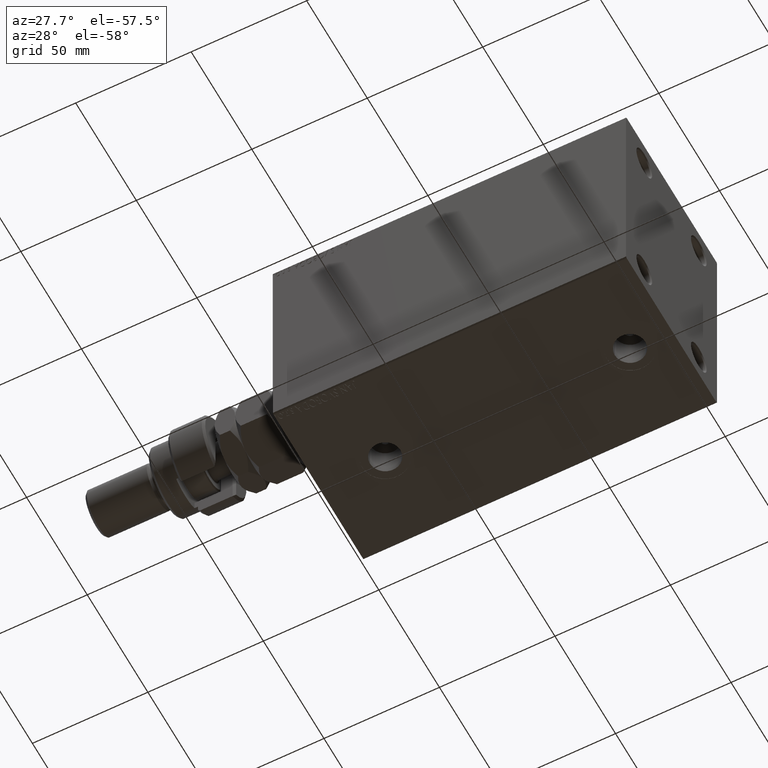
[diagram: clean part render]
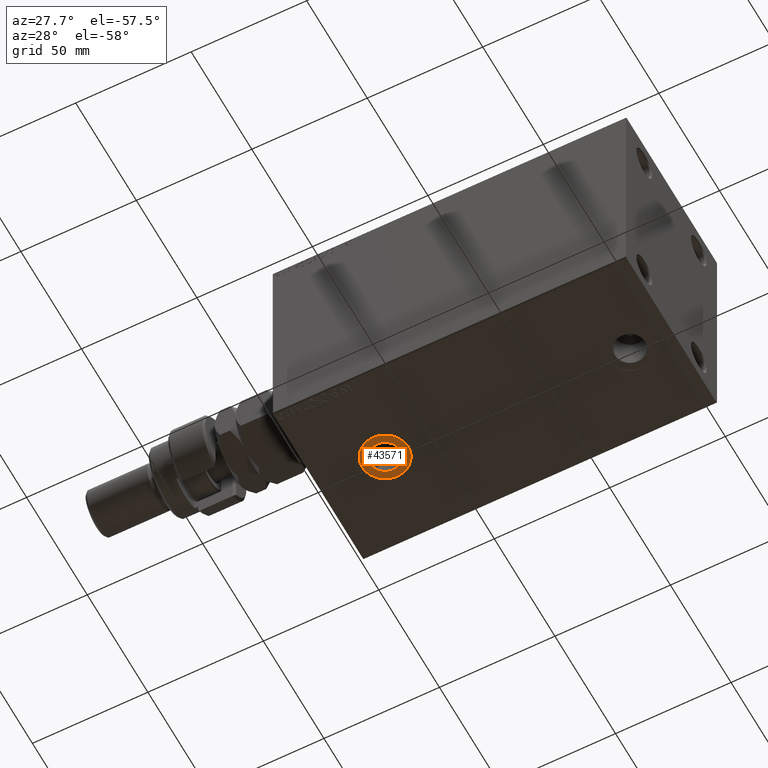
[diagram: same view with one face highlighted and labeled with its STEP entity id]
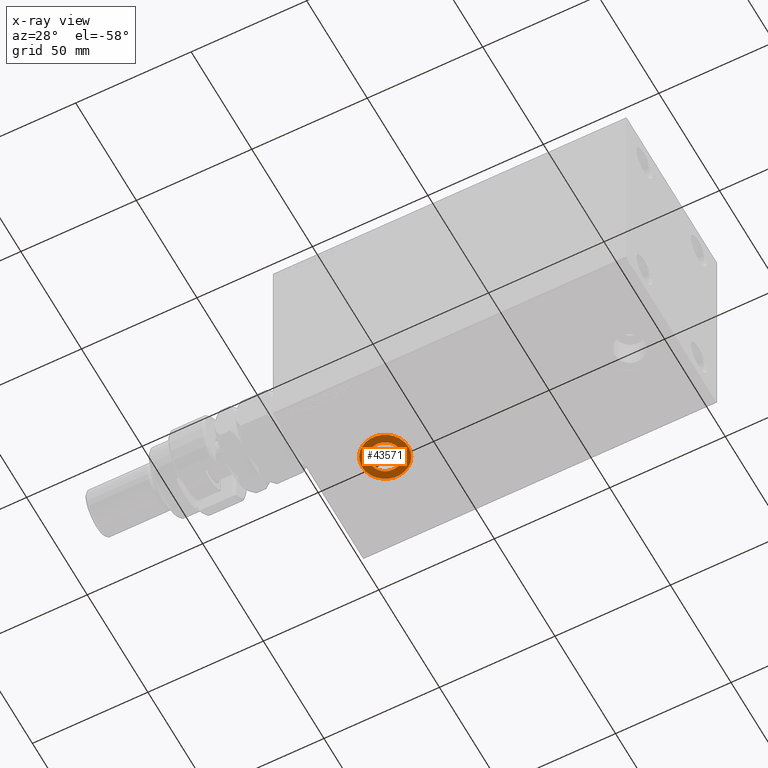
[diagram: x-ray of the same camera — body ghosted, the highlighted face saturated]
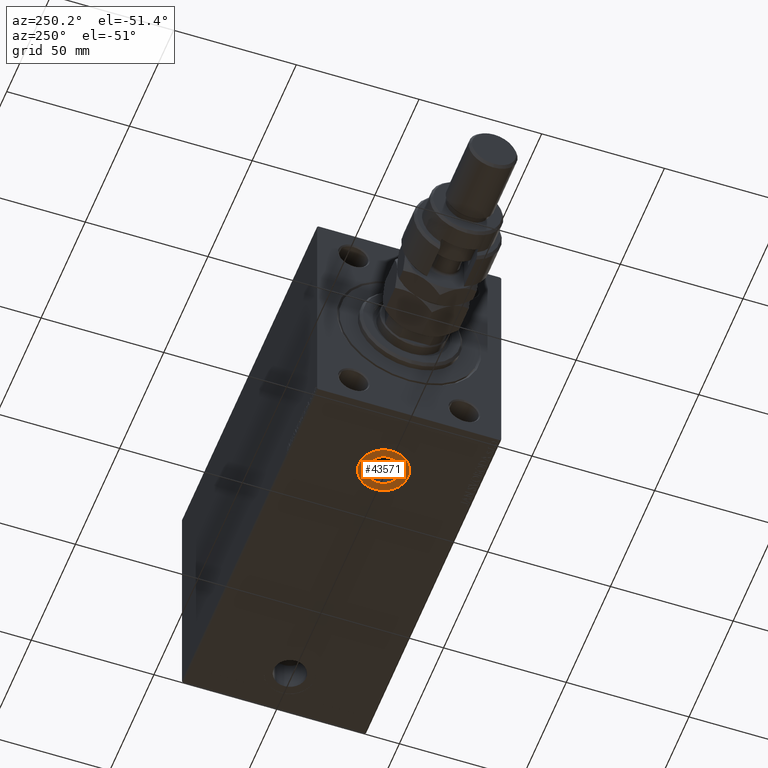
[diagram: same view with one face highlighted and labeled with its STEP entity id]
A machine part, auxiliary view. The second image highlights one B-rep face of the part: STEP entity #43571.
The next image is the same camera in x-ray: the body ghosted, the highlighted face saturated — about 0% of this face is hidden behind the body in this view.
A second angle (auxiliary view) of the same face is appended — the face is thin or edge-on in the first view.
In plain terms, the highlighted planar face has unit normal (0, 0, -1).
Its self-contained STEP definition (entity closure, byte-faithful):
#824 = EDGE_CURVE ( 'NONE', #15349, #29303, #4055, .T. ) ;
#1416 = DIRECTION ( 'NONE',  ( -1.000000000000000000, 0.000000000000000000, 0.000000000000000000 ) ) ;
#3021 = DIRECTION ( 'NONE',  ( -1.000000000000000000, 0.000000000000000000, 0.000000000000000000 ) ) ;
#3400 = VERTEX_POINT ( 'NONE', #27910 ) ;
#4055 = CIRCLE ( 'NONE', #14219, 9.999999999999998224 ) ;
#4980 = ORIENTED_EDGE ( 'NONE', *, *, #824, .T. ) ;
#5682 = DIRECTION ( 'NONE',  ( 0.000000000000000000, 0.000000000000000000, -1.000000000000000000 ) ) ;
#6421 = CIRCLE ( 'NONE', #33852, 9.999999999999998224 ) ;
#7048 = CARTESIAN_POINT ( 'NONE',  ( 29.00000000000000000, -3.767935990684166618E-15, -49.89999999999999858 ) ) ;
#7506 = CARTESIAN_POINT ( 'NONE',  ( 29.00000000000000000, -3.767935990684166618E-15, -49.89999999999999858 ) ) ;
#10031 = CARTESIAN_POINT ( 'NONE',  ( 39.00000000000000000, -2.543289191536813953E-15, -49.89999999999999858 ) ) ;
#10334 = AXIS2_PLACEMENT_3D ( 'NONE', #7506, #5682, #24788 ) ;
#10616 = AXIS2_PLACEMENT_3D ( 'NONE', #22887, #37871, #27042 ) ;
#12221 = DIRECTION ( 'NONE',  ( 0.000000000000000000, 0.000000000000000000, -1.000000000000000000 ) ) ;
#12268 = CIRCLE ( 'NONE', #28689, 6.580000000000002736 ) ;
#13211 = EDGE_LOOP ( 'NONE', ( #21457, #31665 ) ) ;
#14219 = AXIS2_PLACEMENT_3D ( 'NONE', #40059, #21406, #3021 ) ;
#15349 = VERTEX_POINT ( 'NONE', #10031 ) ;
#15774 = EDGE_CURVE ( 'NONE', #3400, #19306, #12268, .T. ) ;
#18966 = FACE_BOUND ( 'NONE', #13211, .T. ) ;
#19306 = VERTEX_POINT ( 'NONE', #28611 ) ;
#21406 = DIRECTION ( 'NONE',  ( 0.000000000000000000, 0.000000000000000000, -1.000000000000000000 ) ) ;
#21457 = ORIENTED_EDGE ( 'NONE', *, *, #15774, .F. ) ;
#22009 = DIRECTION ( 'NONE',  ( 0.000000000000000000, 0.000000000000000000, -1.000000000000000000 ) ) ;
#22887 = CARTESIAN_POINT ( 'NONE',  ( 0.000000000000000000, 0.000000000000000000, -49.89999999999999858 ) ) ;
#24788 = DIRECTION ( 'NONE',  ( -1.000000000000000000, 0.000000000000000000, 0.000000000000000000 ) ) ;
#27042 = DIRECTION ( 'NONE',  ( -1.000000000000000000, 0.000000000000000000, -0.000000000000000000 ) ) ;
#27910 = CARTESIAN_POINT ( 'NONE',  ( 22.41999999999999815, -3.767935990684166618E-15, -49.89999999999999858 ) ) ;
#28611 = CARTESIAN_POINT ( 'NONE',  ( 35.57999999999999829, -2.962118396845207576E-15, -49.89999999999999858 ) ) ;
#28689 = AXIS2_PLACEMENT_3D ( 'NONE', #7048, #22009, #31046 ) ;
#29303 = VERTEX_POINT ( 'NONE', #33863 ) ;
#30245 = FACE_OUTER_BOUND ( 'NONE', #31138, .T. ) ;
#31046 = DIRECTION ( 'NONE',  ( -1.000000000000000000, 0.000000000000000000, 0.000000000000000000 ) ) ;
#31138 = EDGE_LOOP ( 'NONE', ( #45595, #4980 ) ) ;
#31665 = ORIENTED_EDGE ( 'NONE', *, *, #34859, .F. ) ;
#33852 = AXIS2_PLACEMENT_3D ( 'NONE', #35253, #12221, #1416 ) ;
#33863 = CARTESIAN_POINT ( 'NONE',  ( 19.00000000000000355, -3.767935990684166618E-15, -49.89999999999999858 ) ) ;
#34859 = EDGE_CURVE ( 'NONE', #19306, #3400, #44059, .T. ) ;
#35253 = CARTESIAN_POINT ( 'NONE',  ( 29.00000000000000000, -3.767935990684166618E-15, -49.89999999999999858 ) ) ;
#35397 = EDGE_CURVE ( 'NONE', #29303, #15349, #6421, .T. ) ;
#37871 = DIRECTION ( 'NONE',  ( 0.000000000000000000, 0.000000000000000000, -1.000000000000000000 ) ) ;
#40059 = CARTESIAN_POINT ( 'NONE',  ( 29.00000000000000000, -3.767935990684166618E-15, -49.89999999999999858 ) ) ;
#43571 = ADVANCED_FACE ( 'NONE', ( #18966, #30245 ), #45236, .T. ) ;
#44059 = CIRCLE ( 'NONE', #10334, 6.580000000000002736 ) ;
#45236 = PLANE ( 'NONE',  #10616 ) ;
#45595 = ORIENTED_EDGE ( 'NONE', *, *, #35397, .T. ) ;